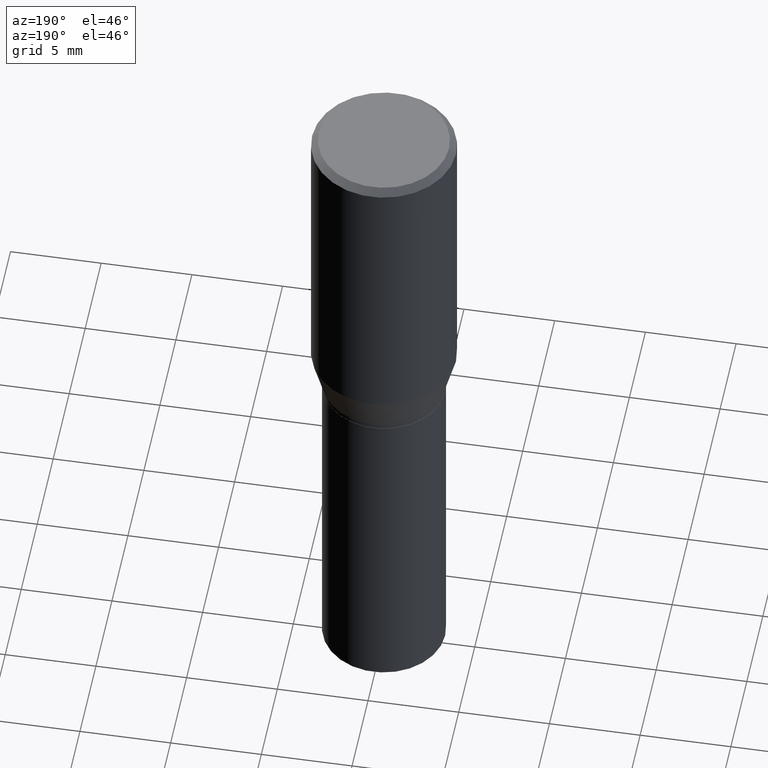
[diagram: clean part render]
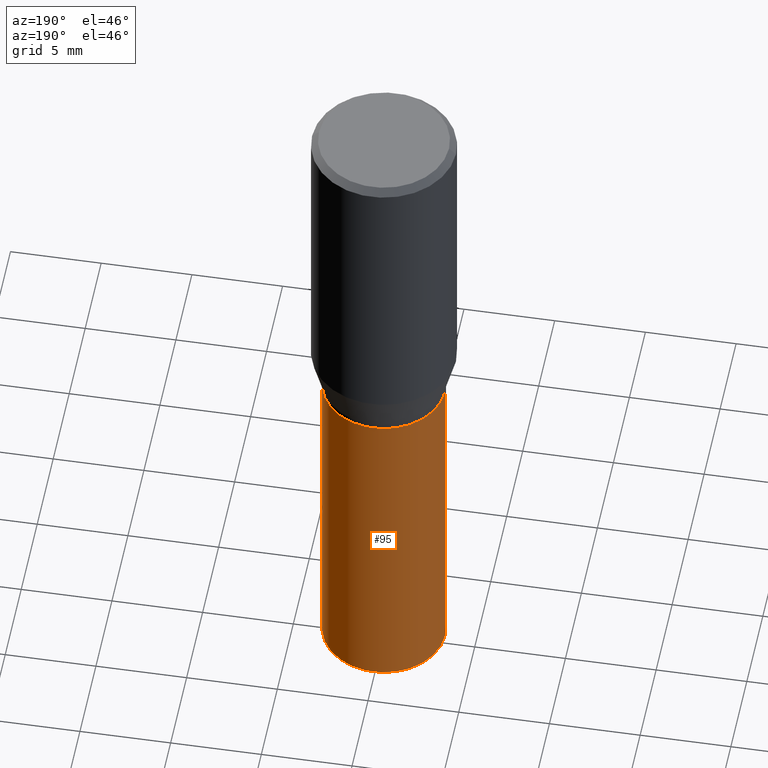
[diagram: same view with one face highlighted and labeled with its STEP entity id]
A machine part, auxiliary view. The second image highlights one B-rep face of the part: STEP entity #95.
In plain terms, the highlighted cylindrical surface (partial cylindrical patch) has radius 3.3731 mm, axis along (-0, 0, 1).
Its self-contained STEP definition (entity closure, byte-faithful):
#2 = AXIS2_PLACEMENT_3D ( 'NONE', #280, #392, #69 ) ;
#8 = LINE ( 'NONE', #187, #110 ) ;
#29 = ORIENTED_EDGE ( 'NONE', *, *, #176, .T. ) ;
#34 = CARTESIAN_POINT ( 'NONE',  ( 0.000000000000000000, 0.000000000000000000, 0.000000000000000000 ) ) ;
#41 = DIRECTION ( 'NONE',  ( -2.445468806185136597E-29, 3.491481338843145583E-15, 1.000000000000000000 ) ) ;
#56 = CIRCLE ( 'NONE', #264, 0.1328000000000000014 ) ;
#64 = DIRECTION ( 'NONE',  ( -2.445468806185136877E-29, 3.491481338843145188E-15, 1.000000000000000000 ) ) ;
#69 = DIRECTION ( 'NONE',  ( 1.000000000000000000, -6.982962677686268288E-15, 0.000000000000000000 ) ) ;
#70 = DIRECTION ( 'NONE',  ( 1.000000000000000000, -6.982962677686266711E-15, 4.876176775795935232E-29 ) ) ;
#95 = ADVANCED_FACE ( 'NONE', ( #351 ), #321, .T. ) ;
#96 = CIRCLE ( 'NONE', #2, 0.1328000000000000014 ) ;
#103 = EDGE_CURVE ( 'NONE', #126, #339, #96, .T. ) ;
#110 = VECTOR ( 'NONE', #111, 39.37007874015748143 ) ;
#111 = DIRECTION ( 'NONE',  ( -2.445468806185136877E-29, 3.491481338843145188E-15, 1.000000000000000000 ) ) ;
#126 = VERTEX_POINT ( 'NONE', #181 ) ;
#168 = EDGE_LOOP ( 'NONE', ( #269, #29, #198, #315 ) ) ;
#176 = EDGE_CURVE ( 'NONE', #385, #339, #8, .T. ) ;
#181 = CARTESIAN_POINT ( 'NONE',  ( 0.1328000000000000014, -3.545948447729095705E-15, -0.7500000000000001110 ) ) ;
#187 = CARTESIAN_POINT ( 'NONE',  ( -0.1328000000000000014, 9.436007530894130566E-16, -6.532345799858513932E-30 ) ) ;
#198 = ORIENTED_EDGE ( 'NONE', *, *, #103, .F. ) ;
#219 = DIRECTION ( 'NONE',  ( 1.000000000000000000, -6.982962677686263555E-15, 0.000000000000000000 ) ) ;
#230 = VERTEX_POINT ( 'NONE', #331 ) ;
#245 = CARTESIAN_POINT ( 'NONE',  ( -0.1328000000000000014, -2.984315753109125576E-15, -0.7500000000000001110 ) ) ;
#255 = DIRECTION ( 'NONE',  ( -2.445468806185136597E-29, 3.491481338843145583E-15, 1.000000000000000000 ) ) ;
#256 = EDGE_CURVE ( 'NONE', #230, #385, #56, .T. ) ;
#264 = AXIS2_PLACEMENT_3D ( 'NONE', #433, #255, #219 ) ;
#269 = ORIENTED_EDGE ( 'NONE', *, *, #256, .T. ) ;
#280 = CARTESIAN_POINT ( 'NONE',  ( 1.834101604638852448E-29, -2.618611004132359088E-15, -0.7500000000000001110 ) ) ;
#287 = VECTOR ( 'NONE', #64, 39.37007874015748143 ) ;
#315 = ORIENTED_EDGE ( 'NONE', *, *, #454, .F. ) ;
#316 = CARTESIAN_POINT ( 'NONE',  ( -0.1328000000000000014, -2.984315753109125576E-15, -1.500000000000000222 ) ) ;
#319 = LINE ( 'NONE', #429, #287 ) ;
#321 = CYLINDRICAL_SURFACE ( 'NONE', #386, 0.1328000000000000014 ) ;
#331 = CARTESIAN_POINT ( 'NONE',  ( 0.1328000000000000014, -6.164559451861454793E-15, -1.500000000000000222 ) ) ;
#339 = VERTEX_POINT ( 'NONE', #245 ) ;
#351 = FACE_OUTER_BOUND ( 'NONE', #168, .T. ) ;
#385 = VERTEX_POINT ( 'NONE', #316 ) ;
#386 = AXIS2_PLACEMENT_3D ( 'NONE', #34, #41, #70 ) ;
#392 = DIRECTION ( 'NONE',  ( -2.445468806185136597E-29, 3.491481338843145583E-15, 1.000000000000000000 ) ) ;
#429 = CARTESIAN_POINT ( 'NONE',  ( 0.1328000000000000014, -9.273374435967362223E-16, 6.475562758257002307E-30 ) ) ;
#433 = CARTESIAN_POINT ( 'NONE',  ( 3.668203209277704895E-29, -5.237222008264718177E-15, -1.500000000000000222 ) ) ;
#454 = EDGE_CURVE ( 'NONE', #230, #126, #319, .T. ) ;